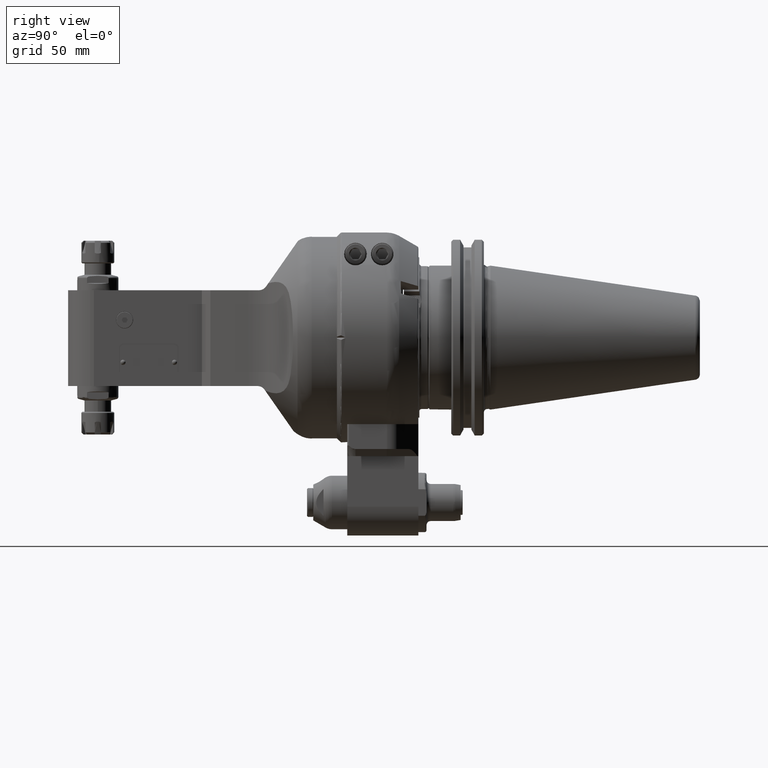
[diagram: clean part render]
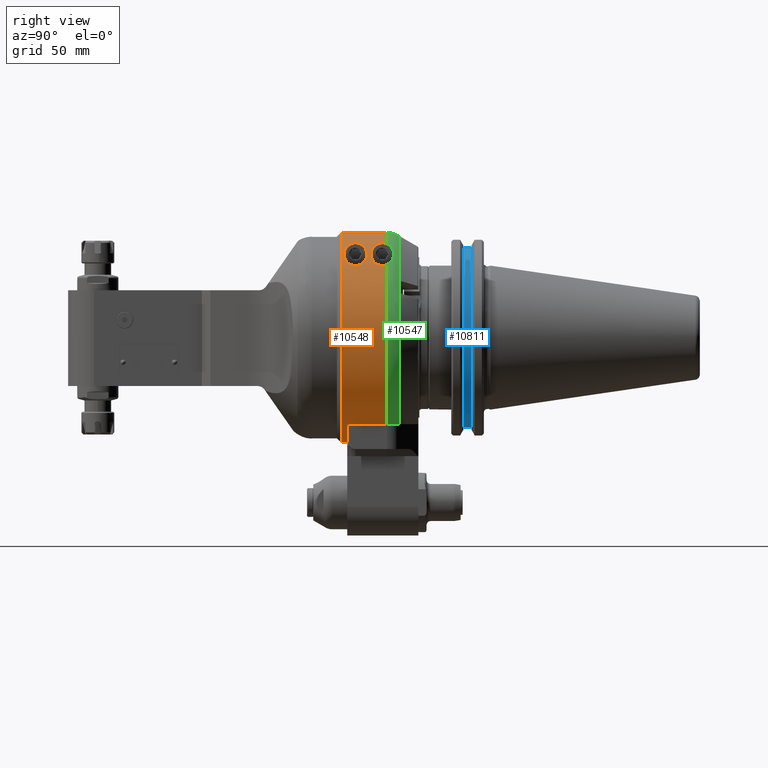
[diagram: same view with three faces highlighted in distinct colors, each labeled with its STEP entity id]
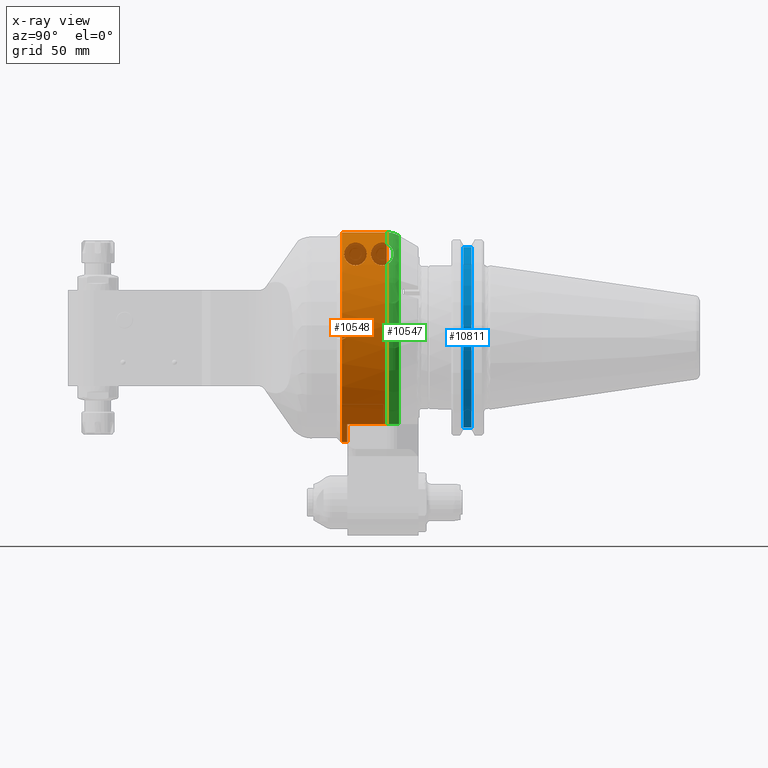
[diagram: x-ray of the same camera — body ghosted, the three highlighted faces saturated]
A machine part, right view with three faces highlighted in distinct colors.
The next image is the same camera in x-ray (body ghosted, the three faces saturated) — at least one of them is partly hidden behind the body in this view.
Their STEP definitions:

[orange] entity #10548 — the highlighted cylindrical surface (partial cylindrical patch) has radius 51 mm, axis along (0, -1, 0).
#237=ELLIPSE('',#11596,5.67912532921425,2.00787401574803);
#238=ELLIPSE('',#11597,5.67912532921425,2.00787401574803);
#336=B_SPLINE_CURVE_WITH_KNOTS('',3,(#19038,#19039,#19040,#19041,#19042,
#19043),.UNSPECIFIED.,.F.,.F.,(4,2,4),(-0.220144328878827,-0.201175489980687,
0.),.UNSPECIFIED.);
#337=B_SPLINE_CURVE_WITH_KNOTS('',3,(#19044,#19045,#19046,#19047,#19048,
#19049,#19050,#19051,#19052,#19053,#19054,#19055,#19056,#19057,#19058,#19059,
#19060,#19061,#19062,#19063,#19064,#19065,#19066,#19067,#19068,#19069),
 .UNSPECIFIED.,.F.,.F.,(4,2,2,2,2,2,2,2,2,2,2,2,4),(0.,0.201175489980687,
0.402350979961374,0.726790310303929,1.05122964064648,1.44743687444551,1.84364410824453,
2.06341028648597,2.1732933756067,2.28317646472742,2.39305955384814,2.50294264296886,
2.52975105249028),.UNSPECIFIED.);
#338=B_SPLINE_CURVE_WITH_KNOTS('',3,(#19083,#19084,#19085,#19086,#19087,
#19088,#19089,#19090,#19091,#19092,#19093,#19094,#19095,#19096,#19097,#19098,
#19099,#19100,#19101,#19102,#19103,#19104,#19105),.UNSPECIFIED.,.F.,.F.,
(4,2,2,2,2,3,2,2,2,2,4),(-1.23194682408093,-0.835739590281912,-0.439532356482891,
-0.219766178241446,-0.109883089120723,0.,0.0949450193758139,0.189890038751628,
0.520032016318137,0.865269466584616,1.2105069168511),.UNSPECIFIED.);
#339=B_SPLINE_CURVE_WITH_KNOTS('',3,(#19106,#19107,#19108,#19109,#19110,
#19111,#19112,#19113,#19114,#19115,#19116,#19117,#19118,#19119,#19120,#19121,
#19122,#19123),.UNSPECIFIED.,.F.,.F.,(4,2,2,2,2,2,2,2,4),(1.2105069168511,
1.53494624719365,1.8593855775362,2.06056106751689,2.26173655749758,2.46291204747827,
2.66408753745895,2.98852686780151,3.31296619814406),.UNSPECIFIED.);
#470=FACE_BOUND('',#2319,.T.);
#625=CYLINDRICAL_SURFACE('',#11590,2.00787401574803);
#1025=CIRCLE('',#11588,2.00787401574803);
#1026=CIRCLE('',#11589,2.00787401574803);
#1027=CIRCLE('',#11591,2.00787401574803);
#1028=CIRCLE('',#11592,2.00787401574803);
#1029=CIRCLE('',#11593,2.00787401574803);
#1030=CIRCLE('',#11594,2.00787401574803);
#1031=CIRCLE('',#11595,2.00787401574803);
#1032=CIRCLE('',#11598,2.00787401574803);
#1620=FACE_OUTER_BOUND('',#2318,.T.);
#2318=EDGE_LOOP('',(#8395,#8396,#8397,#8398,#8399,#8400,#8401,#8402,#8403,
#8404,#8405,#8406,#8407,#8408,#8409,#8410,#8411,#8412));
#2319=EDGE_LOOP('',(#8413,#8414));
#3068=LINE('',#18935,#3821);
#3071=LINE('',#19027,#3824);
#3072=LINE('',#19029,#3825);
#3073=LINE('',#19036,#3826);
#3074=LINE('',#19071,#3827);
#3075=LINE('',#19080,#3828);
#3821=VECTOR('',#13908,0.729346255774016);
#3824=VECTOR('',#13927,0.729346255774016);
#3825=VECTOR('',#13928,0.0249944543751929);
#3826=VECTOR('',#13935,0.024994454375189);
#3827=VECTOR('',#13936,0.856144431699606);
#3828=VECTOR('',#13945,0.85614422250315);
#4748=VERTEX_POINT('',#18884);
#4749=VERTEX_POINT('',#18934);
#4754=VERTEX_POINT('',#18989);
#4755=VERTEX_POINT('',#18998);
#4756=VERTEX_POINT('',#19000);
#4757=VERTEX_POINT('',#19023);
#4758=VERTEX_POINT('',#19024);
#4759=VERTEX_POINT('',#19026);
#4760=VERTEX_POINT('',#19028);
#4761=VERTEX_POINT('',#19030);
#4762=VERTEX_POINT('',#19032);
#4763=VERTEX_POINT('',#19034);
#4764=VERTEX_POINT('',#19037);
#4765=VERTEX_POINT('',#19070);
#4766=VERTEX_POINT('',#19072);
#4767=VERTEX_POINT('',#19074);
#4768=VERTEX_POINT('',#19076);
#4769=VERTEX_POINT('',#19078);
#4770=VERTEX_POINT('',#19081);
#4771=VERTEX_POINT('',#19082);
#6047=EDGE_CURVE('',#4748,#4749,#3068,.T.);
#6055=EDGE_CURVE('',#4754,#4755,#1025,.T.);
#6057=EDGE_CURVE('',#4756,#4748,#1026,.T.);
#6058=EDGE_CURVE('',#4757,#4758,#1027,.T.);
#6059=EDGE_CURVE('',#4757,#4759,#3071,.T.);
#6060=EDGE_CURVE('',#4759,#4760,#3072,.T.);
#6061=EDGE_CURVE('',#4761,#4760,#1028,.T.);
#6062=EDGE_CURVE('',#4762,#4761,#1029,.T.);
#6063=EDGE_CURVE('',#4763,#4762,#1030,.T.);
#6064=EDGE_CURVE('',#4763,#4749,#3073,.T.);
#6065=EDGE_CURVE('',#4756,#4764,#336,.T.);
#6066=EDGE_CURVE('',#4764,#4755,#337,.T.);
#6067=EDGE_CURVE('',#4754,#4765,#3074,.T.);
#6068=EDGE_CURVE('',#4766,#4765,#1031,.T.);
#6069=EDGE_CURVE('',#4767,#4766,#237,.T.);
#6070=EDGE_CURVE('',#4768,#4767,#238,.T.);
#6071=EDGE_CURVE('',#4769,#4768,#1032,.T.);
#6072=EDGE_CURVE('',#4769,#4758,#3075,.T.);
#6073=EDGE_CURVE('',#4770,#4771,#338,.T.);
#6074=EDGE_CURVE('',#4771,#4770,#339,.T.);
#8395=ORIENTED_EDGE('',*,*,#6058,.F.);
#8396=ORIENTED_EDGE('',*,*,#6059,.T.);
#8397=ORIENTED_EDGE('',*,*,#6060,.T.);
#8398=ORIENTED_EDGE('',*,*,#6061,.F.);
#8399=ORIENTED_EDGE('',*,*,#6062,.F.);
#8400=ORIENTED_EDGE('',*,*,#6063,.F.);
#8401=ORIENTED_EDGE('',*,*,#6064,.T.);
#8402=ORIENTED_EDGE('',*,*,#6047,.F.);
#8403=ORIENTED_EDGE('',*,*,#6057,.F.);
#8404=ORIENTED_EDGE('',*,*,#6065,.T.);
#8405=ORIENTED_EDGE('',*,*,#6066,.T.);
#8406=ORIENTED_EDGE('',*,*,#6055,.F.);
#8407=ORIENTED_EDGE('',*,*,#6067,.T.);
#8408=ORIENTED_EDGE('',*,*,#6068,.F.);
#8409=ORIENTED_EDGE('',*,*,#6069,.F.);
#8410=ORIENTED_EDGE('',*,*,#6070,.F.);
#8411=ORIENTED_EDGE('',*,*,#6071,.F.);
#8412=ORIENTED_EDGE('',*,*,#6072,.T.);
#8413=ORIENTED_EDGE('',*,*,#6073,.T.);
#8414=ORIENTED_EDGE('',*,*,#6074,.T.);
#10548=ADVANCED_FACE('',(#1620,#470),#625,.T.);
#11588=AXIS2_PLACEMENT_3D('',#18999,#13919,#13920);
#11589=AXIS2_PLACEMENT_3D('',#19021,#13921,#13922);
#11590=AXIS2_PLACEMENT_3D('',#19022,#13923,#13924);
#11591=AXIS2_PLACEMENT_3D('',#19025,#13925,#13926);
#11592=AXIS2_PLACEMENT_3D('',#19031,#13929,#13930);
#11593=AXIS2_PLACEMENT_3D('',#19033,#13931,#13932);
#11594=AXIS2_PLACEMENT_3D('',#19035,#13933,#13934);
#11595=AXIS2_PLACEMENT_3D('',#19073,#13937,#13938);
#11596=AXIS2_PLACEMENT_3D('',#19075,#13939,#13940);
#11597=AXIS2_PLACEMENT_3D('',#19077,#13941,#13942);
#11598=AXIS2_PLACEMENT_3D('',#19079,#13943,#13944);
#13908=DIRECTION('',(5.062868653732E-14,-1.,3.451955900272E-14));
#13919=DIRECTION('center_axis',(0.,1.,0.));
#13920=DIRECTION('ref_axis',(0.0294117647058804,0.,0.999567380468613));
#13921=DIRECTION('center_axis',(0.,1.,0.));
#13922=DIRECTION('ref_axis',(0.719066469693323,0.,0.694941301235422));
#13923=DIRECTION('center_axis',(0.,-1.,0.));
#13924=DIRECTION('ref_axis',(1.4663902280623E-10,0.,-1.));
#13925=DIRECTION('center_axis',(0.,1.,0.));
#13926=DIRECTION('ref_axis',(-0.567273574176089,0.,-0.823529411764684));
#13927=DIRECTION('',(-5.043691120953E-14,-1.,3.451955900272E-14));
#13928=DIRECTION('',(0.,-1.,1.119213207666E-14));
#13929=DIRECTION('center_axis',(0.,1.,0.));
#13930=DIRECTION('ref_axis',(-0.54901960784313,0.,-0.835809470037146));
#13931=DIRECTION('center_axis',(0.,1.,0.));
#13932=DIRECTION('ref_axis',(0.54901960784313,0.,-0.835809470037146));
#13933=DIRECTION('center_axis',(0.,1.,0.));
#13934=DIRECTION('ref_axis',(0.567273574176089,0.,-0.823529411764684));
#13935=DIRECTION('',(7.27488584983E-14,1.,2.238426415332E-14));
#13936=DIRECTION('',(1.273469652131E-9,-1.,-3.747115976057E-11));
#13937=DIRECTION('center_axis',(0.,-1.,0.));
#13938=DIRECTION('ref_axis',(0.999826388474475,0.,0.0186331132687895));
#13939=DIRECTION('center_axis',(0.612372435695813,-0.353553390593307,-0.707106781186515));
#13940=DIRECTION('ref_axis',(-0.23145502494317,-0.935414346693473,0.267261241912441));
#13941=DIRECTION('center_axis',(0.612372435695813,-0.353553390593307,0.707106781186515));
#13942=DIRECTION('ref_axis',(0.23145502494317,0.935414346693473,0.267261241912441));
#13943=DIRECTION('center_axis',(0.,-1.,0.));
#13944=DIRECTION('ref_axis',(0.,0.,-1.));
#13945=DIRECTION('',(4.970251645951E-10,1.,1.462479987387E-11));
#18884=CARTESIAN_POINT('',(1.13901386940866,0.95119110385,-1.65354330708661));
#18934=CARTESIAN_POINT('',(1.13901386940866,0.221844848075984,-1.65354330708661));
#18935=CARTESIAN_POINT('',(1.13901386940866,0.95119110385,-1.65354330708661));
#18989=CARTESIAN_POINT('',(0.0590551170510557,0.951191103851969,2.00700537026339));
#18998=CARTESIAN_POINT('',(0.902484810701969,0.951191103851969,1.79362181899291));
#18999=CARTESIAN_POINT('Origin',(0.,0.951191103851969,0.));
#19000=CARTESIAN_POINT('',(1.44379488009252,0.951191103854331,1.39535458122087));
#19021=CARTESIAN_POINT('Origin',(0.,0.951191103851969,0.));
#19022=CARTESIAN_POINT('Origin',(0.,1.22047244094488,0.));
#19023=CARTESIAN_POINT('',(-1.13901386940866,0.95119110385,-1.65354330708661));
#19024=CARTESIAN_POINT('',(-0.0590551173321203,0.951191104261162,2.00700537025509));
#19025=CARTESIAN_POINT('Origin',(0.,0.951191103851969,0.));
#19026=CARTESIAN_POINT('',(-1.13901386940866,0.221844848075984,-1.65354330708661));
#19027=CARTESIAN_POINT('',(-1.13901386940866,0.95119110385,-1.65354330708661));
#19028=CARTESIAN_POINT('',(-1.13901386940866,0.196850393700787,-1.65354330708661));
#19029=CARTESIAN_POINT('',(-1.13901386940866,0.221844848075984,-1.65354330708661));
#19030=CARTESIAN_POINT('',(-1.10236220472441,0.196850393700787,-1.67820011700354));
#19031=CARTESIAN_POINT('Origin',(0.,0.196850393700787,0.));
#19032=CARTESIAN_POINT('',(1.10236220472441,0.196850393700787,-1.67820011700354));
#19033=CARTESIAN_POINT('Origin',(0.,0.196850393700787,0.));
#19034=CARTESIAN_POINT('',(1.13901386940866,0.196850393700787,-1.65354330708661));
#19035=CARTESIAN_POINT('Origin',(0.,0.196850393700787,0.));
#19036=CARTESIAN_POINT('',(1.13901386940866,0.196850393700787,-1.65354330708661));
#19037=CARTESIAN_POINT('',(1.4604123509939,0.866141732283465,1.37795276703543));
#19038=CARTESIAN_POINT('Ctrl Pts',(1.44379488009305,0.95119110385468,1.39535458122056));
#19039=CARTESIAN_POINT('Ctrl Pts',(1.44472479804332,0.948938218856057,1.39439238079239));
#19040=CARTESIAN_POINT('Ctrl Pts',(1.44562017584725,0.946658605356445,1.39346399512748));
#19041=CARTESIAN_POINT('Ctrl Pts',(1.45559153260272,0.919919798512047,1.3831066342035));
#19042=CARTESIAN_POINT('Ctrl Pts',(1.4604123509939,0.892542715220562,1.37795276703543));
#19043=CARTESIAN_POINT('Ctrl Pts',(1.4604123509939,0.866141732283465,1.37795276703543));
#19044=CARTESIAN_POINT('Ctrl Pts',(1.4604123509939,0.866141732283465,1.37795276703543));
#19045=CARTESIAN_POINT('Ctrl Pts',(1.4604123509939,0.839740749346367,1.37795276703543));
#19046=CARTESIAN_POINT('Ctrl Pts',(1.45559153260272,0.812363666054882,1.3831066342035));
#19047=CARTESIAN_POINT('Ctrl Pts',(1.43736719231406,0.763493975921901,1.40203646237032));
#19048=CARTESIAN_POINT('Ctrl Pts',(1.42396651543218,0.741968848736813,1.41573110566628));
#19049=CARTESIAN_POINT('Ctrl Pts',(1.3859605062458,0.698259522023266,1.45318837533328));
#19050=CARTESIAN_POINT('Ctrl Pts',(1.35594462519938,0.678775531929512,1.48151648211885));
#19051=CARTESIAN_POINT('Ctrl Pts',(1.29004224478356,0.654442366682728,1.53924265034148));
#19052=CARTESIAN_POINT('Ctrl Pts',(1.25412508300605,0.649606299212598,1.56861122307841));
#19053=CARTESIAN_POINT('Ctrl Pts',(1.17902296255044,0.649606299212598,1.62608931787607));
#19054=CARTESIAN_POINT('Ctrl Pts',(1.13299265935012,0.656746435275783,1.65856546470041));
#19055=CARTESIAN_POINT('Ctrl Pts',(1.04161336696342,0.684927759632745,1.71742637219514));
#19056=CARTESIAN_POINT('Ctrl Pts',(0.996211399320057,0.705667499707285,
1.74387279868384));
#19057=CARTESIAN_POINT('Ctrl Pts',(0.935531085032465,0.747733616580978,
1.77677972452765));
#19058=CARTESIAN_POINT('Ctrl Pts',(0.913103042451295,0.766724820883149,
1.78834175312381));
#19059=CARTESIAN_POINT('Ctrl Pts',(0.887445607376041,0.800352287029037,
1.80113566636076));
#19060=CARTESIAN_POINT('Ctrl Pts',(0.88023021326652,0.812405058652633,1.80465656636114));
#19061=CARTESIAN_POINT('Ctrl Pts',(0.870026724944561,0.838090697919794,
1.80959756231383));
#19062=CARTESIAN_POINT('Ctrl Pts',(0.867036021852556,0.851721379380483,
1.81102363317717));
#19063=CARTESIAN_POINT('Ctrl Pts',(0.867036021852556,0.880562085186447,
1.81102363317717));
#19064=CARTESIAN_POINT('Ctrl Pts',(0.870026724944561,0.894192766647135,
1.80959756231383));
#19065=CARTESIAN_POINT('Ctrl Pts',(0.88023021326652,0.919878405914296,1.80465656636114));
#19066=CARTESIAN_POINT('Ctrl Pts',(0.887445607376041,0.931931177537893,
1.80113566636076));
#19067=CARTESIAN_POINT('Ctrl Pts',(0.898084651957616,0.945875054252076,
1.7958305759298));
#19068=CARTESIAN_POINT('Ctrl Pts',(0.900250636568581,0.948559021219207,
1.79474597359393));
#19069=CARTESIAN_POINT('Ctrl Pts',(0.902484810701992,0.951191103852053,
1.79362181899316));
#19070=CARTESIAN_POINT('',(0.0590551175829522,0.0950477777697542,2.00700537024774));
#19071=CARTESIAN_POINT('',(0.0590551159653937,0.951191937392913,2.00700537029528));
#19072=CARTESIAN_POINT('',(2.00752542567717,0.0950477780458268,0.0374129439651102));
#19073=CARTESIAN_POINT('Origin',(0.,0.0950477780461811,0.));
#19074=CARTESIAN_POINT('',(2.00787401574803,0.170477441689843,0.));
#19075=CARTESIAN_POINT('Origin',(0.,-3.30726236878297,0.));
#19076=CARTESIAN_POINT('',(2.00752542567717,0.0950477780459842,-0.0374129439650197));
#19077=CARTESIAN_POINT('Origin',(0.,-3.30726236878305,0.));
#19078=CARTESIAN_POINT('',(-0.0590551175448827,0.0950477777498608,2.00700537024883));
#19079=CARTESIAN_POINT('Origin',(0.,0.0950477780461811,0.));
#19080=CARTESIAN_POINT('',(-0.0590551169795276,0.0950474860932283,2.00700537026535));
#19081=CARTESIAN_POINT('',(1.22031366575905,0.137795275590551,1.5944882001063));
#19082=CARTESIAN_POINT('',(1.22031366575889,0.570866141732283,1.5944882001063));
#19083=CARTESIAN_POINT('Ctrl Pts',(1.22031366575889,0.137795275590551,1.5944882001063));
#19084=CARTESIAN_POINT('Ctrl Pts',(1.17902296255044,0.137795275590551,1.62608931787607));
#19085=CARTESIAN_POINT('Ctrl Pts',(1.13299265935012,0.144935411653736,1.65856546470041));
#19086=CARTESIAN_POINT('Ctrl Pts',(1.04161336696342,0.173116736010698,1.71742637219514));
#19087=CARTESIAN_POINT('Ctrl Pts',(0.996211399320057,0.193856476085238,
1.74387279868384));
#19088=CARTESIAN_POINT('Ctrl Pts',(0.935531085032465,0.235922592958931,
1.77677972452765));
#19089=CARTESIAN_POINT('Ctrl Pts',(0.913103042451295,0.254913797261102,
1.78834175312381));
#19090=CARTESIAN_POINT('Ctrl Pts',(0.887445607376041,0.288541263406989,
1.80113566636076));
#19091=CARTESIAN_POINT('Ctrl Pts',(0.88023021326652,0.300594035030586,1.80465656636114));
#19092=CARTESIAN_POINT('Ctrl Pts',(0.870026724944561,0.326279674297747,
1.80959756231383));
#19093=CARTESIAN_POINT('Ctrl Pts',(0.867036021852556,0.339910355758435,
1.81102363317717));
#19094=CARTESIAN_POINT('Ctrl Pts',(0.867036021852556,0.354330708661417,
1.81102363317717));
#19095=CARTESIAN_POINT('Ctrl Pts',(0.867036021852556,0.366790684957456,
1.81102363317717));
#19096=CARTESIAN_POINT('Ctrl Pts',(0.869469121530989,0.379988443982063,
1.8098638351706));
#19097=CARTESIAN_POINT('Ctrl Pts',(0.878577975979835,0.404689907149554,
1.8054596078077));
#19098=CARTESIAN_POINT('Ctrl Pts',(0.88516981604866,0.416230027309861,1.80224639793977));
#19099=CARTESIAN_POINT('Ctrl Pts',(0.916140320237773,0.460013201188597,
1.78688718776245));
#19100=CARTESIAN_POINT('Ctrl Pts',(0.954827738202063,0.488305505770262,
1.7667407491806));
#19101=CARTESIAN_POINT('Ctrl Pts',(1.02403627645108,0.527458367232658,1.72758788771821));
#19102=CARTESIAN_POINT('Ctrl Pts',(1.06408557071184,0.543644144182053,1.70340302699049));
#19103=CARTESIAN_POINT('Ctrl Pts',(1.14423048399291,0.565398300561471,1.65063520400774));
#19104=CARTESIAN_POINT('Ctrl Pts',(1.18433477421087,0.570866141732283,1.62202401569401));
#19105=CARTESIAN_POINT('Ctrl Pts',(1.22031366575889,0.570866141732283,1.5944882001063));
#19106=CARTESIAN_POINT('Ctrl Pts',(1.22031366575889,0.570866141732283,1.5944882001063));
#19107=CARTESIAN_POINT('Ctrl Pts',(1.25412508300605,0.570866141732283,1.56861122307841));
#19108=CARTESIAN_POINT('Ctrl Pts',(1.29004224478356,0.566030074262154,1.53924265034148));
#19109=CARTESIAN_POINT('Ctrl Pts',(1.35594462519938,0.54169690901537,1.48151648211885));
#19110=CARTESIAN_POINT('Ctrl Pts',(1.3859605062458,0.522212918921616,1.45318837533328));
#19111=CARTESIAN_POINT('Ctrl Pts',(1.42396651543218,0.478503592208069,1.41573110566628));
#19112=CARTESIAN_POINT('Ctrl Pts',(1.43736719231406,0.456978465022981,1.40203646237032));
#19113=CARTESIAN_POINT('Ctrl Pts',(1.45559153260272,0.40810877489,1.3831066342035));
#19114=CARTESIAN_POINT('Ctrl Pts',(1.4604123509939,0.380731691598515,1.37795276703543));
#19115=CARTESIAN_POINT('Ctrl Pts',(1.4604123509939,0.327929725724319,1.37795276703543));
#19116=CARTESIAN_POINT('Ctrl Pts',(1.45559153260272,0.300552642432835,1.3831066342035));
#19117=CARTESIAN_POINT('Ctrl Pts',(1.43736719231406,0.251682952299854,1.40203646237032));
#19118=CARTESIAN_POINT('Ctrl Pts',(1.42396651543218,0.230157825114766,1.41573110566628));
#19119=CARTESIAN_POINT('Ctrl Pts',(1.3859605062458,0.186448498401219,1.45318837533328));
#19120=CARTESIAN_POINT('Ctrl Pts',(1.35594462519938,0.166964508307465,1.48151648211885));
#19121=CARTESIAN_POINT('Ctrl Pts',(1.29004224478356,0.142631343060681,1.53924265034148));
#19122=CARTESIAN_POINT('Ctrl Pts',(1.25412508300605,0.137795275590551,1.56861122307841));
#19123=CARTESIAN_POINT('Ctrl Pts',(1.22031366575889,0.137795275590551,1.5944882001063));

[blue] entity #10811 — the highlighted cylindrical surface (partial cylindrical patch) has radius 45.644 mm, axis along (0, -1, 0).
#688=CYLINDRICAL_SURFACE('',#12120,1.79700787401575);
#1283=CIRCLE('',#12119,1.79700787401575);
#1284=CIRCLE('',#12121,1.79700787401575);
#1883=FACE_OUTER_BOUND('',#2623,.T.);
#2623=EDGE_LOOP('',(#9702,#9703,#9704,#9705));
#3340=LINE('',#21213,#4093);
#3369=LINE('',#21388,#4122);
#4093=VECTOR('',#15094,0.150984251968504);
#4122=VECTOR('',#15263,0.150984251968504);
#5116=VERTEX_POINT('',#21210);
#5117=VERTEX_POINT('',#21212);
#5163=VERTEX_POINT('',#21385);
#5164=VERTEX_POINT('',#21387);
#6615=EDGE_CURVE('',#5117,#5116,#3340,.T.);
#6690=EDGE_CURVE('',#5164,#5163,#3369,.T.);
#6698=EDGE_CURVE('',#5164,#5116,#1283,.T.);
#6699=EDGE_CURVE('',#5117,#5163,#1284,.T.);
#9702=ORIENTED_EDGE('',*,*,#6698,.F.);
#9703=ORIENTED_EDGE('',*,*,#6690,.T.);
#9704=ORIENTED_EDGE('',*,*,#6699,.F.);
#9705=ORIENTED_EDGE('',*,*,#6615,.T.);
#10811=ADVANCED_FACE('',(#1883),#688,.T.);
#12119=AXIS2_PLACEMENT_3D('',#21405,#15282,#15283);
#12120=AXIS2_PLACEMENT_3D('',#21406,#15284,#15285);
#12121=AXIS2_PLACEMENT_3D('',#21407,#15286,#15287);
#15094=DIRECTION('',(0.,-1.,0.));
#15263=DIRECTION('',(0.,1.,0.));
#15282=DIRECTION('center_axis',(0.,-1.,0.));
#15283=DIRECTION('ref_axis',(0.283805100341809,0.,-0.958881987014031));
#15284=DIRECTION('center_axis',(0.,-1.,0.));
#15285=DIRECTION('ref_axis',(1.,0.,0.));
#15286=DIRECTION('center_axis',(0.,1.,0.));
#15287=DIRECTION('ref_axis',(0.283805100341809,0.,0.958881987014031));
#21210=CARTESIAN_POINT('',(0.51,2.41757874015748,1.72311848091614));
#21212=CARTESIAN_POINT('',(0.51,2.56856299212598,1.72311848091614));
#21213=CARTESIAN_POINT('',(0.51,2.56856299212598,1.72311848091614));
#21385=CARTESIAN_POINT('',(0.51,2.56856299212598,-1.72311848091614));
#21387=CARTESIAN_POINT('',(0.51,2.41757874015748,-1.72311848091614));
#21388=CARTESIAN_POINT('',(0.51,2.41757874015748,-1.72311848091614));
#21405=CARTESIAN_POINT('Origin',(0.,2.41757874015748,0.));
#21406=CARTESIAN_POINT('Origin',(0.,2.49307086614173,0.));
#21407=CARTESIAN_POINT('Origin',(0.,2.56856299212598,0.));

[green] entity #10547 — the highlighted toroidal blend (fillet) surface has major radius 39 mm and minor (blend) radius 12 mm.
#198=TOROIDAL_SURFACE('',#11587,1.53543307086614,0.47244094488189);
#332=B_SPLINE_CURVE_WITH_KNOTS('',3,(#18885,#18886,#18887,#18888,#18889,
#18890,#18891,#18892,#18893,#18894,#18895,#18896,#18897,#18898,#18899,#18900,
#18901,#18902,#18903,#18904,#18905,#18906,#18907,#18908,#18909,#18910,#18911,
#18912,#18913,#18914,#18915,#18916,#18917,#18918,#18919,#18920,#18921,#18922,
#18923,#18924,#18925,#18926,#18927,#18928,#18929,#18930,#18931,#18932,#18933),
 .UNSPECIFIED.,.F.,.F.,(4,3,3,3,3,3,3,3,3,3,3,3,3,3,3,3,4),(1.76015707477404E-10,
0.0625,0.125,0.1875,0.25,0.3125,0.375,0.4375,0.5,0.5625,0.625,0.6875,0.75,
0.8125,0.875,0.9375,1.),.UNSPECIFIED.);
#334=B_SPLINE_CURVE_WITH_KNOTS('',3,(#18990,#18991,#18992,#18993,#18994,
#18995,#18996,#18997),.UNSPECIFIED.,.F.,.F.,(4,2,2,4),(-0.594227847708127,
-0.444215565867735,-0.222107782933867,0.),.UNSPECIFIED.);
#335=B_SPLINE_CURVE_WITH_KNOTS('',3,(#19001,#19002,#19003,#19004,#19005,
#19006,#19007,#19008,#19009,#19010,#19011,#19012,#19013,#19014,#19015,#19016,
#19017,#19018,#19019,#19020),.UNSPECIFIED.,.F.,.F.,(4,2,2,2,2,2,2,2,2,4),
(-4.91913814154316,-4.58748623361205,-4.32306617361763,-4.16790956586227,
-4.04086273706546,-3.90308926242449,-3.70723915094824,-3.37949336782339,
-3.16249646482945,-3.12273254153702),.UNSPECIFIED.);
#1021=CIRCLE('',#11582,1.94457893092165);
#1025=CIRCLE('',#11588,2.00787401574803);
#1026=CIRCLE('',#11589,2.00787401574803);
#1619=FACE_OUTER_BOUND('',#2317,.T.);
#2317=EDGE_LOOP('',(#8389,#8390,#8391,#8392,#8393,#8394));
#4746=VERTEX_POINT('',#18866);
#4747=VERTEX_POINT('',#18871);
#4748=VERTEX_POINT('',#18884);
#4754=VERTEX_POINT('',#18989);
#4755=VERTEX_POINT('',#18998);
#4756=VERTEX_POINT('',#19000);
#6045=EDGE_CURVE('',#4746,#4747,#1021,.T.);
#6046=EDGE_CURVE('',#4746,#4748,#332,.T.);
#6054=EDGE_CURVE('',#4747,#4754,#334,.T.);
#6055=EDGE_CURVE('',#4754,#4755,#1025,.T.);
#6056=EDGE_CURVE('',#4755,#4756,#335,.T.);
#6057=EDGE_CURVE('',#4756,#4748,#1026,.T.);
#8389=ORIENTED_EDGE('',*,*,#6046,.F.);
#8390=ORIENTED_EDGE('',*,*,#6045,.T.);
#8391=ORIENTED_EDGE('',*,*,#6054,.T.);
#8392=ORIENTED_EDGE('',*,*,#6055,.T.);
#8393=ORIENTED_EDGE('',*,*,#6056,.T.);
#8394=ORIENTED_EDGE('',*,*,#6057,.T.);
#10547=ADVANCED_FACE('',(#1619),#198,.T.);
#11582=AXIS2_PLACEMENT_3D('',#18882,#13904,#13905);
#11587=AXIS2_PLACEMENT_3D('',#18988,#13917,#13918);
#11588=AXIS2_PLACEMENT_3D('',#18999,#13919,#13920);
#11589=AXIS2_PLACEMENT_3D('',#19021,#13921,#13922);
#13904=DIRECTION('center_axis',(0.,-1.,0.));
#13905=DIRECTION('ref_axis',(0.526241939180605,0.,-0.850334887822108));
#13917=DIRECTION('center_axis',(0.,-1.,0.));
#13918=DIRECTION('ref_axis',(0.,0.,1.));
#13919=DIRECTION('center_axis',(0.,1.,0.));
#13920=DIRECTION('ref_axis',(0.0294117647058804,0.,0.999567380468613));
#13921=DIRECTION('center_axis',(0.,1.,0.));
#13922=DIRECTION('ref_axis',(0.719066469693323,0.,0.694941301235422));
#18866=CARTESIAN_POINT('',(1.02331898734916,1.1874115763866,-1.65354330711503));
#18871=CARTESIAN_POINT('',(0.0590551219020135,1.18741200863102,1.94368174871452));
#18882=CARTESIAN_POINT('Origin',(0.,1.18741157629291,0.));
#18884=CARTESIAN_POINT('',(1.13901386940866,0.95119110385,-1.65354330708661));
#18885=CARTESIAN_POINT('Ctrl Pts',(1.02331898736608,1.18741157640516,-1.65354330709205));
#18886=CARTESIAN_POINT('Ctrl Pts',(1.02872858573645,1.18248084771583,-1.65354330709387));
#18887=CARTESIAN_POINT('Ctrl Pts',(1.03389943490069,1.17753356917462,-1.6535433101443));
#18888=CARTESIAN_POINT('Ctrl Pts',(1.03883888765775,1.1725799389003,-1.65354330708662));
#18889=CARTESIAN_POINT('Ctrl Pts',(1.04377834042871,1.16762630861203,-1.65354330402894));
#18890=CARTESIAN_POINT('Ctrl Pts',(1.04848642493771,1.16266635276707,-1.65354333922724));
#18891=CARTESIAN_POINT('Ctrl Pts',(1.05297456991915,1.1577061865597,-1.65354330708654));
#18892=CARTESIAN_POINT('Ctrl Pts',(1.0574627149006,1.15274602035233,-1.65354327494583));
#18893=CARTESIAN_POINT('Ctrl Pts',(1.06173097256999,1.14778569391233,-1.65354325810049));
#18894=CARTESIAN_POINT('Ctrl Pts',(1.06579626844694,1.14282252852333,-1.65354330708662));
#18895=CARTESIAN_POINT('Ctrl Pts',(1.0698615643239,1.13785936313432,-1.65354335607275));
#18896=CARTESIAN_POINT('Ctrl Pts',(1.07372381984775,1.13289329401493,-1.65354334893783));
#18897=CARTESIAN_POINT('Ctrl Pts',(1.07738961863035,1.12793249138239,-1.65354330708656));
#18898=CARTESIAN_POINT('Ctrl Pts',(1.08105541741294,1.12297168874985,-1.6535432652353));
#18899=CARTESIAN_POINT('Ctrl Pts',(1.08452482843263,1.11801620168602,-1.65354329413169));
#18900=CARTESIAN_POINT('Ctrl Pts',(1.08781149614076,1.11306325125165,-1.65354330708663));
#18901=CARTESIAN_POINT('Ctrl Pts',(1.09109816384888,1.10811030081728,-1.65354332004157));
#18902=CARTESIAN_POINT('Ctrl Pts',(1.0942020638577,1.10315987413664,-1.65354328061193));
#18903=CARTESIAN_POINT('Ctrl Pts',(1.09713264820749,1.09821178278104,-1.65354330708662));
#18904=CARTESIAN_POINT('Ctrl Pts',(1.10006323255728,1.09326369142544,-1.65354333356132));
#18905=CARTESIAN_POINT('Ctrl Pts',(1.10282045586731,1.08831790564208,-1.65354335705771));
#18906=CARTESIAN_POINT('Ctrl Pts',(1.10540941475571,1.08338109485151,-1.65354330708661));
#18907=CARTESIAN_POINT('Ctrl Pts',(1.10799837364411,1.07844428406094,-1.65354325711552));
#18908=CARTESIAN_POINT('Ctrl Pts',(1.11041915418162,1.07351649415253,-1.65354326252214));
#18909=CARTESIAN_POINT('Ctrl Pts',(1.11268289271849,1.06859004709291,-1.6535433070866));
#18910=CARTESIAN_POINT('Ctrl Pts',(1.11494663125536,1.06366360003329,-1.65354335165105));
#18911=CARTESIAN_POINT('Ctrl Pts',(1.11705324655059,1.05873846032682,-1.65354331492428));
#18912=CARTESIAN_POINT('Ctrl Pts',(1.11900650154218,1.0538193850078,-1.6535433070866));
#18913=CARTESIAN_POINT('Ctrl Pts',(1.12095975653377,1.04890030968879,-1.65354329924892));
#18914=CARTESIAN_POINT('Ctrl Pts',(1.12275966451837,1.04398730083251,-1.65354333954005));
#18915=CARTESIAN_POINT('Ctrl Pts',(1.12441113594364,1.03908290705103,-1.65354330708653));
#18916=CARTESIAN_POINT('Ctrl Pts',(1.12606260736892,1.03417851326955,-1.65354327463301));
#18917=CARTESIAN_POINT('Ctrl Pts',(1.12756570455414,1.02928275769879,-1.65354326130225));
#18918=CARTESIAN_POINT('Ctrl Pts',(1.12892722276511,1.02438730321934,-1.65354330708654));
#18919=CARTESIAN_POINT('Ctrl Pts',(1.13028874097608,1.0194918487399,-1.65354335287084));
#18920=CARTESIAN_POINT('Ctrl Pts',(1.13150859304689,1.01459667149663,-1.65354333015302));
#18921=CARTESIAN_POINT('Ctrl Pts',(1.13258853065393,1.00970767258091,-1.65354330708661));
#18922=CARTESIAN_POINT('Ctrl Pts',(1.13366846826098,1.00481867366518,-1.6535432840202));
#18923=CARTESIAN_POINT('Ctrl Pts',(1.13460853361563,0.999935860034629,-1.65354332204716));
#18924=CARTESIAN_POINT('Ctrl Pts',(1.1354121610038,0.995057965000459,-1.65354330708661));
#18925=CARTESIAN_POINT('Ctrl Pts',(1.13621578839197,0.990180069966288,-1.65354329212606));
#18926=CARTESIAN_POINT('Ctrl Pts',(1.13688300994161,0.985307101078306,-1.65354327108804));
#18927=CARTESIAN_POINT('Ctrl Pts',(1.13741638924518,0.98043203317375,-1.65354330708656));
#18928=CARTESIAN_POINT('Ctrl Pts',(1.13794976854874,0.975556965269193,-1.65354334308509));
#18929=CARTESIAN_POINT('Ctrl Pts',(1.13834923316923,0.970679790094117,-1.65354333081465));
#18930=CARTESIAN_POINT('Ctrl Pts',(1.13861524823583,0.965805722202231,-1.65354330708662));
#18931=CARTESIAN_POINT('Ctrl Pts',(1.13888126330244,0.960931654310345,-1.65354328335859));
#18932=CARTESIAN_POINT('Ctrl Pts',(1.13901386940866,0.956060694558661,-1.65354330708661));
#18933=CARTESIAN_POINT('Ctrl Pts',(1.13901386940865,0.95119110385,-1.65354330708659));
#18988=CARTESIAN_POINT('Origin',(0.,0.951191103851969,0.));
#18989=CARTESIAN_POINT('',(0.0590551170510557,0.951191103851969,2.00700537026339));
#18990=CARTESIAN_POINT('Ctrl Pts',(0.0590551181102362,1.18741200869209,
1.94368174882024));
#18991=CARTESIAN_POINT('Ctrl Pts',(0.0590551181102362,1.16898058275116,
1.95432807411386));
#18992=CARTESIAN_POINT('Ctrl Pts',(0.0590551181102362,1.15014145628158,
1.96350524390092));
#18993=CARTESIAN_POINT('Ctrl Pts',(0.0590551181102362,1.10502569486451,
1.98219726143907));
#18994=CARTESIAN_POINT('Ctrl Pts',(0.0590551181102362,1.07451566371992,
1.99172470302084));
#18995=CARTESIAN_POINT('Ctrl Pts',(0.0590551181102362,1.01217237183944,
2.00412876807738));
#18996=CARTESIAN_POINT('Ctrl Pts',(0.0590551181102362,0.980339106861663,
2.00700537023226));
#18997=CARTESIAN_POINT('Ctrl Pts',(0.0590551181102362,0.951191103851969,
2.00700537023226));
#18998=CARTESIAN_POINT('',(0.902484810701969,0.951191103851969,1.79362181899291));
#18999=CARTESIAN_POINT('Origin',(0.,0.951191103851969,0.));
#19000=CARTESIAN_POINT('',(1.44379488009252,0.951191103854331,1.39535458122087));
#19001=CARTESIAN_POINT('Ctrl Pts',(0.902484810701923,0.951191103851972,
1.79362181899319));
#19002=CARTESIAN_POINT('Ctrl Pts',(0.929266347923859,0.982742457861792,
1.78014633029535));
#19003=CARTESIAN_POINT('Ctrl Pts',(0.962396476322376,1.01113316047456,1.75911380952405));
#19004=CARTESIAN_POINT('Ctrl Pts',(1.03267499845791,1.05125184193167,1.71028042858822));
#19005=CARTESIAN_POINT('Ctrl Pts',(1.06501256194761,1.06367873803511,1.6866606508205));
#19006=CARTESIAN_POINT('Ctrl Pts',(1.11622343136875,1.07624550142893,1.64889945121527));
#19007=CARTESIAN_POINT('Ctrl Pts',(1.13513831478466,1.07934065752876,1.6348577497675));
#19008=CARTESIAN_POINT('Ctrl Pts',(1.16909850326603,1.08245353491882,1.60959242195405));
#19009=CARTESIAN_POINT('Ctrl Pts',(1.18425118377326,1.08292917682087,1.59829709473754));
#19010=CARTESIAN_POINT('Ctrl Pts',(1.21529570927765,1.08214679978915,1.57512621924728));
#19011=CARTESIAN_POINT('Ctrl Pts',(1.23124697628855,1.08073590843215,1.56320350553381));
#19012=CARTESIAN_POINT('Ctrl Pts',(1.26896892191637,1.07501556862056,1.53494110381334));
#19013=CARTESIAN_POINT('Ctrl Pts',(1.29077487335708,1.06966861268813,1.51854773509639));
#19014=CARTESIAN_POINT('Ctrl Pts',(1.34629114738435,1.04997605736943,1.47642121652898));
#19015=CARTESIAN_POINT('Ctrl Pts',(1.37632564977765,1.03264401959136,1.45318558748385));
#19016=CARTESIAN_POINT('Ctrl Pts',(1.41517805177112,0.99779439670498,1.42155275376077));
#19017=CARTESIAN_POINT('Ctrl Pts',(1.42897303617719,0.981187270589055,1.40979615963919));
#19018=CARTESIAN_POINT('Ctrl Pts',(1.44061682641204,0.958454140044534,1.39857641610629));
#19019=CARTESIAN_POINT('Ctrl Pts',(1.44228119982922,0.954858252723087,1.39692080950719));
#19020=CARTESIAN_POINT('Ctrl Pts',(1.44379488009305,0.951191103854678,1.39535458122056));
#19021=CARTESIAN_POINT('Origin',(0.,0.951191103851969,0.));